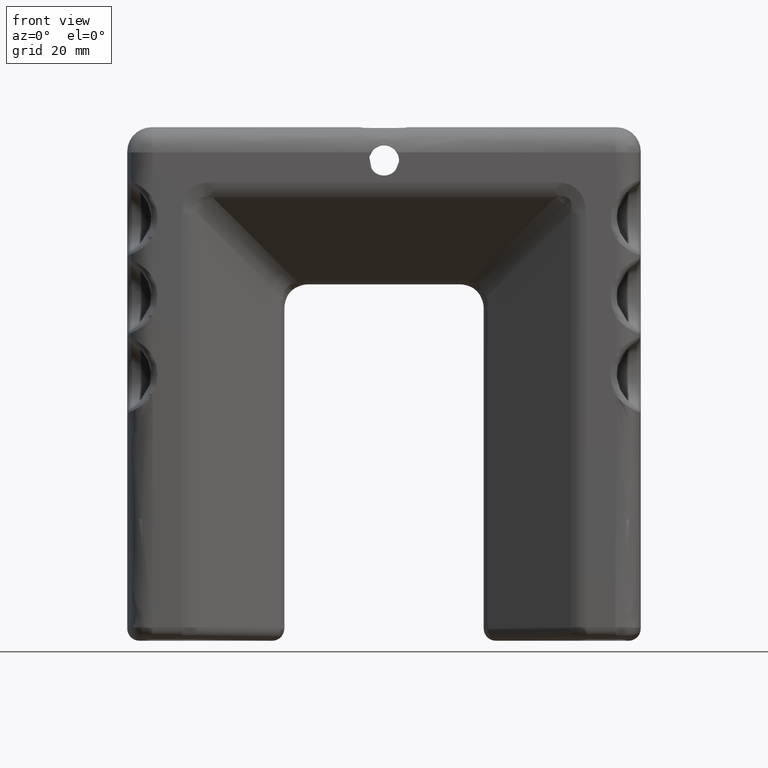
[diagram: clean part render]
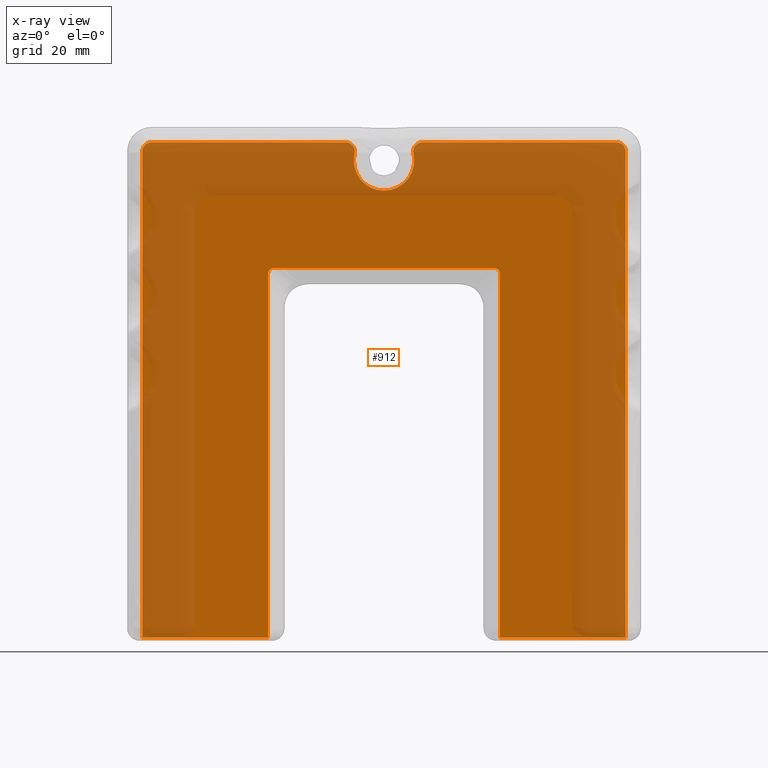
[diagram: x-ray — body ghosted, one internal face saturated and labeled with its STEP entity id]
A machine part, front view, then the same camera in x-ray: the body is ghosted and one INTERNAL B-rep face — a face not visible from any outside direction — is saturated and labeled: STEP entity #912.
In plain terms, the highlighted face is a freeform B-spline surface patch.
Its self-contained STEP definition (entity closure, byte-faithful):
#97=CARTESIAN_POINT('',(19.794216985461500,-1.0,-58.499999999866397));
#98=VERTEX_POINT('',#97);
#204=CARTESIAN_POINT('',(19.198063139290351,-1.0,-58.499999999867697));
#205=VERTEX_POINT('',#204);
#206=CARTESIAN_POINT('',(19.198063139290351,-1.0,-58.499999999867697));
#207=CARTESIAN_POINT('',(19.794216985461500,-1.0,-58.499999999866397));
#208=QUASI_UNIFORM_CURVE('',1,(#206,#207),.UNSPECIFIED.,.F.,.U.);
#209=EDGE_CURVE('',#205,#98,#208,.T.);
#233=CARTESIAN_POINT('',(39.999999999949203,-1.0,22.000000000103348));
#234=VERTEX_POINT('',#233);
#235=CARTESIAN_POINT('',(38.499999999948912,-1.0,23.500000000103348));
#236=VERTEX_POINT('',#235);
#237=CARTESIAN_POINT('',(39.999999999949203,-1.0,22.000000000103348));
#238=CARTESIAN_POINT('',(40.000163599903331,-1.0,22.184103496027650));
#239=CARTESIAN_POINT('',(39.945073541168512,-1.0,22.478505776709522));
#240=CARTESIAN_POINT('',(39.768744093799462,-1.000000000000000,22.818242696358460));
#241=CARTESIAN_POINT('',(39.576334859867913,-1.000000000000000,23.058655063844039));
#242=CARTESIAN_POINT('',(39.311832897742548,-1.0,23.281281778944660));
#243=CARTESIAN_POINT('',(38.941769017444940,-0.999999999999999,23.456296856258550));
#244=CARTESIAN_POINT('',(38.647265949474921,-1.000000000000003,23.500059270899481));
#245=CARTESIAN_POINT('',(38.499999999948912,-1.0,23.500000000103348));
#246=B_SPLINE_CURVE_WITH_KNOTS('',3,(#237,#238,#239,#240,#241,#242,#243,#244,#245),.UNSPECIFIED.,.F.,.U.,(4,1,1,1,1,1,4),(0.000000184374399,0.552246036494265,0.883601264318352,1.141336038775168,1.472654176699001,1.914457519395061,2.356253616519624),.UNSPECIFIED.);
#247=EDGE_CURVE('',#234,#236,#246,.T.);
#291=CARTESIAN_POINT('',(-38.499999999949793,-1.0,23.500000000087901));
#292=VERTEX_POINT('',#291);
#293=CARTESIAN_POINT('',(-39.999999999949502,-1.0,22.000000000087852));
#294=VERTEX_POINT('',#293);
#295=CARTESIAN_POINT('',(-38.499999999949793,-1.0,23.500000000087901));
#296=CARTESIAN_POINT('',(-38.647262247812670,-0.999999999999999,23.500048192561980));
#297=CARTESIAN_POINT('',(-38.966334553131198,-1.000000000000003,23.452698096375169));
#298=CARTESIAN_POINT('',(-39.389060035815689,-0.999999999999997,23.239969764325600));
#299=CARTESIAN_POINT('',(-39.696011640590037,-1.000000000000005,22.932861102143999));
#300=CARTESIAN_POINT('',(-39.932289903555329,-0.999999999999993,22.527501050872409));
#301=CARTESIAN_POINT('',(-40.000290629058561,-1.000000000000012,22.208680046433230));
#302=CARTESIAN_POINT('',(-39.999999999949502,-1.0,22.000000000087852));
#303=B_SPLINE_CURVE_WITH_KNOTS('',3,(#295,#296,#297,#298,#299,#300,#301,#302),.UNSPECIFIED.,.F.,.U.,(4,1,1,1,1,4),(0.000000184364183,0.441796807450996,0.957252514814806,1.399000965617028,1.730372233829850,2.356253616519353),.UNSPECIFIED.);
#304=EDGE_CURVE('',#292,#294,#303,.T.);
#349=CARTESIAN_POINT('',(-19.198063139290749,-1.0,1.698063139219495));
#350=VERTEX_POINT('',#349);
#351=CARTESIAN_POINT('',(-18.198063139290749,-1.0,2.698063139219500));
#352=VERTEX_POINT('',#351);
#353=CARTESIAN_POINT('',(-19.198063139290749,-1.0,1.698063139219495));
#354=CARTESIAN_POINT('',(-19.198114965602169,-1.000000000000001,1.804425713730990));
#355=CARTESIAN_POINT('',(-19.170384043376949,-0.999999999999999,1.976188248941998));
#356=CARTESIAN_POINT('',(-19.053813118966811,-1.000000000000004,2.239264413797358));
#357=CARTESIAN_POINT('',(-18.864251247836531,-0.999999999999999,2.470340004744573));
#358=CARTESIAN_POINT('',(-18.557970404660090,-0.999999999999998,2.653838449135733));
#359=CARTESIAN_POINT('',(-18.320796874936189,-1.000000000000002,2.698167607243363));
#360=CARTESIAN_POINT('',(-18.198063139290749,-1.0,2.698063139219500));
#361=B_SPLINE_CURVE_WITH_KNOTS('',3,(#353,#354,#355,#356,#357,#358,#359,#360),.UNSPECIFIED.,.F.,.U.,(4,1,1,1,1,4),(0.000000217533796,0.319076578547025,0.515431442444546,0.859040607081364,1.202673225400021,1.570835744369292),.UNSPECIFIED.);
#362=EDGE_CURVE('',#350,#352,#361,.T.);
#405=CARTESIAN_POINT('',(18.198063139290351,-1.0,2.698063139219500));
#406=VERTEX_POINT('',#405);
#407=CARTESIAN_POINT('',(19.198063139290351,-1.0,1.698063139219500));
#408=VERTEX_POINT('',#407);
#409=CARTESIAN_POINT('',(18.198063139290351,-1.0,2.698063139219500));
#410=CARTESIAN_POINT('',(18.345374672309369,-1.000000000000004,2.698297577911389));
#411=CARTESIAN_POINT('',(18.582403018580070,-0.999999999999991,2.644648288978587));
#412=CARTESIAN_POINT('',(18.880012765621739,-1.000000000000008,2.451038761009666));
#413=CARTESIAN_POINT('',(19.064368267439662,-0.999999999999998,2.226437134477523));
#414=CARTESIAN_POINT('',(19.174706526356530,-1.000000000000003,1.959843663332251));
#415=CARTESIAN_POINT('',(19.198089601566789,-0.999999999999999,1.788057361677497));
#416=CARTESIAN_POINT('',(19.198063139290351,-1.0,1.698063139219500));
#417=B_SPLINE_CURVE_WITH_KNOTS('',3,(#409,#410,#411,#412,#413,#414,#415,#416),.UNSPECIFIED.,.F.,.U.,(4,1,1,1,1,4),(0.000000217531718,0.441800759727289,0.711792649433949,1.055400931051928,1.300852822237935,1.570835744369287),.UNSPECIFIED.);
#418=EDGE_CURVE('',#406,#408,#417,.T.);
#617=CARTESIAN_POINT('',(39.999999999949203,-1.0,-58.499999999820297));
#618=VERTEX_POINT('',#617);
#619=CARTESIAN_POINT('',(19.794216985461500,-1.0,-58.499999999866397));
#620=CARTESIAN_POINT('',(39.999999999949203,-1.0,-58.499999999820297));
#621=QUASI_UNIFORM_CURVE('',1,(#619,#620),.UNSPECIFIED.,.F.,.U.);
#622=EDGE_CURVE('',#98,#618,#621,.T.);
#712=CARTESIAN_POINT('',(-39.999999999949146,-1.0,-58.499999999820403));
#713=VERTEX_POINT('',#712);
#714=CARTESIAN_POINT('',(-19.794216985395249,-1.0,-58.499999999866503));
#715=VERTEX_POINT('',#714);
#716=CARTESIAN_POINT('',(-39.999999999949146,-1.0,-58.499999999820403));
#717=CARTESIAN_POINT('',(-19.794216985395249,-1.0,-58.499999999866503));
#718=QUASI_UNIFORM_CURVE('',1,(#716,#717),.UNSPECIFIED.,.F.,.U.);
#719=EDGE_CURVE('',#713,#715,#718,.T.);
#791=CARTESIAN_POINT('',(-43.995999844888928,-1.0,27.595899841170009));
#792=CARTESIAN_POINT('',(43.996001990655827,-1.0,27.595899841170009));
#793=CARTESIAN_POINT('',(-43.995999844888928,-1.0,-62.595902040345948));
#794=CARTESIAN_POINT('',(43.996001990655827,-1.0,-62.595902040345948));
#795=B_SPLINE_SURFACE_WITH_KNOTS('',1,1,((#791,#793),(#792,#794)),.UNSPECIFIED.,.F.,.F.,.U.,(2,2),(2,2),(0.0,87.992001835544755),(0.0,90.191801881515957),.UNSPECIFIED.);
#796=CARTESIAN_POINT('',(39.999999999949203,-1.0,-58.499999999820297));
#797=CARTESIAN_POINT('',(39.999999999949203,-1.0,22.000000000103348));
#798=QUASI_UNIFORM_CURVE('',1,(#796,#797),.UNSPECIFIED.,.F.,.U.);
#799=EDGE_CURVE('',#618,#234,#798,.T.);
#800=ORIENTED_EDGE('',*,*,#799,.T.);
#801=ORIENTED_EDGE('',*,*,#247,.T.);
#802=CARTESIAN_POINT('',(6.324555320314970,-1.0,23.500000000096900));
#803=VERTEX_POINT('',#802);
#804=CARTESIAN_POINT('',(38.499999999948912,-1.0,23.500000000103348));
#805=CARTESIAN_POINT('',(6.324555320314970,-1.0,23.500000000096900));
#806=QUASI_UNIFORM_CURVE('',1,(#804,#805),.UNSPECIFIED.,.F.,.U.);
#807=EDGE_CURVE('',#236,#803,#806,.T.);
#808=ORIENTED_EDGE('',*,*,#807,.T.);
#809=CARTESIAN_POINT('',(4.865042554088650,-1.0,21.653846153921950));
#810=VERTEX_POINT('',#809);
#811=CARTESIAN_POINT('',(6.324555320314970,-1.0,23.500000000096900));
#812=CARTESIAN_POINT('',(6.155456975136834,-1.000000000000001,23.500097641956931));
#813=CARTESIAN_POINT('',(5.817304120483183,-0.999999999999999,23.442250358906868));
#814=CARTESIAN_POINT('',(5.430014433890564,-1.000000000000001,23.226996614599091));
#815=CARTESIAN_POINT('',(5.156940914739590,-0.999999999999998,22.959398684604981));
#816=CARTESIAN_POINT('',(4.976976505973563,-1.0,22.687390810591211));
#817=CARTESIAN_POINT('',(4.857413194324042,-0.999999999999999,22.368741684086491));
#818=CARTESIAN_POINT('',(4.810243315804030,-1.000000000000002,22.017364107921420));
#819=CARTESIAN_POINT('',(4.835738382091455,-1.000000000000000,21.777237039488881));
#820=CARTESIAN_POINT('',(4.865042554088650,-1.0,21.653846153921950));
#821=B_SPLINE_CURVE_WITH_KNOTS('',3,(#811,#812,#813,#814,#815,#816,#817,#818,#819,#820),.UNSPECIFIED.,.F.,.U.,(4,1,1,1,1,1,1,4),(0.000000155277715,0.507290995084789,1.014610006158865,1.310530249875466,1.648699844460231,1.986913926238907,2.325116765747442,2.705586264590500),.UNSPECIFIED.);
#822=EDGE_CURVE('',#803,#810,#821,.T.);
#823=ORIENTED_EDGE('',*,*,#822,.T.);
#824=CARTESIAN_POINT('',(0.000001559568985,-1.0,15.500000000006400));
#825=VERTEX_POINT('',#824);
#826=CARTESIAN_POINT('',(0.000001559568985,-1.0,15.500000000006400));
#827=CARTESIAN_POINT('',(0.305302974637304,-1.000000000000000,15.499986412469230));
#828=CARTESIAN_POINT('',(1.033362249672125,-1.000000000000000,15.566811707806959));
#829=CARTESIAN_POINT('',(2.160710672470878,-1.000000000000001,15.927809614849950));
#830=CARTESIAN_POINT('',(3.117835167431082,-0.999999999999999,16.542364762369409));
#831=CARTESIAN_POINT('',(3.936755808935634,-1.0,17.355801141705388));
#832=CARTESIAN_POINT('',(4.544694046121959,-1.0,18.288957596938570));
#833=CARTESIAN_POINT('',(4.890712360221843,-0.999999999999999,19.320556730969479));
#834=CARTESIAN_POINT('',(5.041111772037008,-1.000000000000002,20.440636369515879));
#835=CARTESIAN_POINT('',(4.979092050510485,-0.999999999999995,21.173989598630179));
#836=CARTESIAN_POINT('',(4.865042554088650,-1.0,21.653846153921950));
#837=B_SPLINE_CURVE_WITH_KNOTS('',3,(#826,#827,#828,#829,#830,#831,#832,#833,#834,#835,#836),.UNSPECIFIED.,.F.,.U.,(4,1,1,1,1,1,1,1,4),(0.000000120335272,0.915924712978788,2.184143233499044,3.522827412718544,4.297868068235323,5.636475871310522,6.834253765876767,7.538831491210113,9.018395571804728),.UNSPECIFIED.);
#838=EDGE_CURVE('',#825,#810,#837,.T.);
#839=ORIENTED_EDGE('',*,*,#838,.F.);
#840=CARTESIAN_POINT('',(-4.865042554089150,-1.0,21.653846153919950));
#841=VERTEX_POINT('',#840);
#842=CARTESIAN_POINT('',(-4.865042554089150,-1.0,21.653846153919950));
#843=CARTESIAN_POINT('',(-4.984540515185350,-0.999999999999999,21.151135721637559));
#844=CARTESIAN_POINT('',(-5.041447068613007,-1.0,20.416584067204759));
#845=CARTESIAN_POINT('',(-4.886459022281281,-1.0,19.321428596998381));
#846=CARTESIAN_POINT('',(-4.570061904847897,-1.000000000000002,18.355650909172979));
#847=CARTESIAN_POINT('',(-4.007551163469785,-0.999999999999999,17.450912517313739));
#848=CARTESIAN_POINT('',(-3.390435639454052,-1.0,16.802520659158191));
#849=CARTESIAN_POINT('',(-2.781429366287164,-1.0,16.320658972259949));
#850=CARTESIAN_POINT('',(-2.042255176301797,-0.999999999999998,15.902949488375601));
#851=CARTESIAN_POINT('',(-1.080281746880111,-1.000000000000009,15.579801429155610));
#852=CARTESIAN_POINT('',(-0.375762594247527,-0.999999999999982,15.499924400281349));
#853=CARTESIAN_POINT('',(0.000001559568985,-1.0,15.500000000006400));
#854=B_SPLINE_CURVE_WITH_KNOTS('',3,(#842,#843,#844,#845,#846,#847,#848,#849,#850,#851,#852,#853),.UNSPECIFIED.,.F.,.U.,(4,1,1,1,1,1,1,1,1,4),(0.000000120332885,1.550036322984723,2.184143988932433,3.311465271670703,4.579628949678297,5.354645316276017,5.988763996135514,6.904714492606228,7.891120274030539,9.018398691018113),.UNSPECIFIED.);
#855=EDGE_CURVE('',#841,#825,#854,.T.);
#856=ORIENTED_EDGE('',*,*,#855,.F.);
#857=CARTESIAN_POINT('',(-6.324555320316280,-1.0,23.500000000094300));
#858=VERTEX_POINT('',#857);
#859=CARTESIAN_POINT('',(-4.865042554089150,-1.0,21.653846153919950));
#860=CARTESIAN_POINT('',(-4.825899401050712,-1.0,21.818362126585932));
#861=CARTESIAN_POINT('',(-4.807896144677150,-0.999999999999999,22.103645311840591));
#862=CARTESIAN_POINT('',(-4.896858209510451,-1.000000000000002,22.505169814283931));
#863=CARTESIAN_POINT('',(-5.066272755419846,-0.999999999999999,22.849261363105789));
#864=CARTESIAN_POINT('',(-5.302307845855530,-1.000000000000001,23.115465102093079));
#865=CARTESIAN_POINT('',(-5.578554268149720,-1.000000000000000,23.312648986293208));
#866=CARTESIAN_POINT('',(-5.901860316419664,-1.000000000000001,23.458120768230501));
#867=CARTESIAN_POINT('',(-6.169549335785211,-1.000000000000000,23.500078783939991));
#868=CARTESIAN_POINT('',(-6.324555320316280,-1.0,23.500000000094300));
#869=B_SPLINE_CURVE_WITH_KNOTS('',3,(#859,#860,#861,#862,#863,#864,#865,#866,#867,#868),.UNSPECIFIED.,.F.,.U.,(4,1,1,1,1,1,1,4),(0.000000155275396,0.507290995082919,0.845505523039362,1.225995608113604,1.648699844459668,1.902357146391892,2.240576283264036,2.705586264590699),.UNSPECIFIED.);
#870=EDGE_CURVE('',#841,#858,#869,.T.);
#871=ORIENTED_EDGE('',*,*,#870,.T.);
#872=CARTESIAN_POINT('',(-6.324555320316280,-1.0,23.500000000094300));
#873=CARTESIAN_POINT('',(-38.499999999949793,-1.0,23.500000000087901));
#874=QUASI_UNIFORM_CURVE('',1,(#872,#873),.UNSPECIFIED.,.F.,.U.);
#875=EDGE_CURVE('',#858,#292,#874,.T.);
#876=ORIENTED_EDGE('',*,*,#875,.T.);
#877=ORIENTED_EDGE('',*,*,#304,.T.);
#878=CARTESIAN_POINT('',(-39.999999999949502,-1.0,22.000000000087852));
#879=CARTESIAN_POINT('',(-39.999999999949146,-1.0,-58.499999999820403));
#880=QUASI_UNIFORM_CURVE('',1,(#878,#879),.UNSPECIFIED.,.F.,.U.);
#881=EDGE_CURVE('',#294,#713,#880,.T.);
#882=ORIENTED_EDGE('',*,*,#881,.T.);
#883=ORIENTED_EDGE('',*,*,#719,.T.);
#884=CARTESIAN_POINT('',(-19.198063139290451,-1.0,-58.499999999867903));
#885=VERTEX_POINT('',#884);
#886=CARTESIAN_POINT('',(-19.794216985395249,-1.0,-58.499999999866503));
#887=CARTESIAN_POINT('',(-19.198063139290451,-1.0,-58.499999999867903));
#888=QUASI_UNIFORM_CURVE('',1,(#886,#887),.UNSPECIFIED.,.F.,.U.);
#889=EDGE_CURVE('',#715,#885,#888,.T.);
#890=ORIENTED_EDGE('',*,*,#889,.T.);
#891=CARTESIAN_POINT('',(-19.198063139290451,-1.0,-58.499999999867903));
#892=CARTESIAN_POINT('',(-19.198063139290749,-1.0,1.698063139219495));
#893=QUASI_UNIFORM_CURVE('',1,(#891,#892),.UNSPECIFIED.,.F.,.U.);
#894=EDGE_CURVE('',#885,#350,#893,.T.);
#895=ORIENTED_EDGE('',*,*,#894,.T.);
#896=ORIENTED_EDGE('',*,*,#362,.T.);
#897=CARTESIAN_POINT('',(-18.198063139290749,-1.0,2.698063139219500));
#898=CARTESIAN_POINT('',(18.198063139290351,-1.0,2.698063139219500));
#899=QUASI_UNIFORM_CURVE('',1,(#897,#898),.UNSPECIFIED.,.F.,.U.);
#900=EDGE_CURVE('',#352,#406,#899,.T.);
#901=ORIENTED_EDGE('',*,*,#900,.T.);
#902=ORIENTED_EDGE('',*,*,#418,.T.);
#903=CARTESIAN_POINT('',(19.198063139290351,-1.0,1.698063139219500));
#904=CARTESIAN_POINT('',(19.198063139290351,-1.0,-58.499999999867697));
#905=QUASI_UNIFORM_CURVE('',1,(#903,#904),.UNSPECIFIED.,.F.,.U.);
#906=EDGE_CURVE('',#408,#205,#905,.T.);
#907=ORIENTED_EDGE('',*,*,#906,.T.);
#908=ORIENTED_EDGE('',*,*,#209,.T.);
#909=ORIENTED_EDGE('',*,*,#622,.T.);
#910=EDGE_LOOP('',(#800,#801,#808,#823,#839,#856,#871,#876,#877,#882,#883,#890,#895,#896,#901,#902,#907,#908,#909));
#911=FACE_OUTER_BOUND('',#910,.T.);
#912=ADVANCED_FACE('',(#911),#795,.F.);